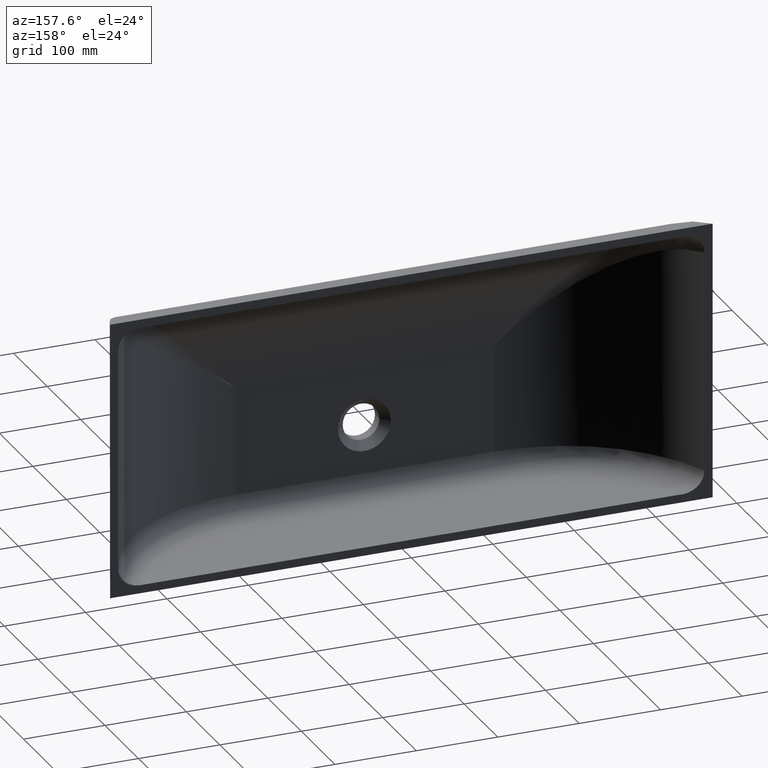
[diagram: clean part render]
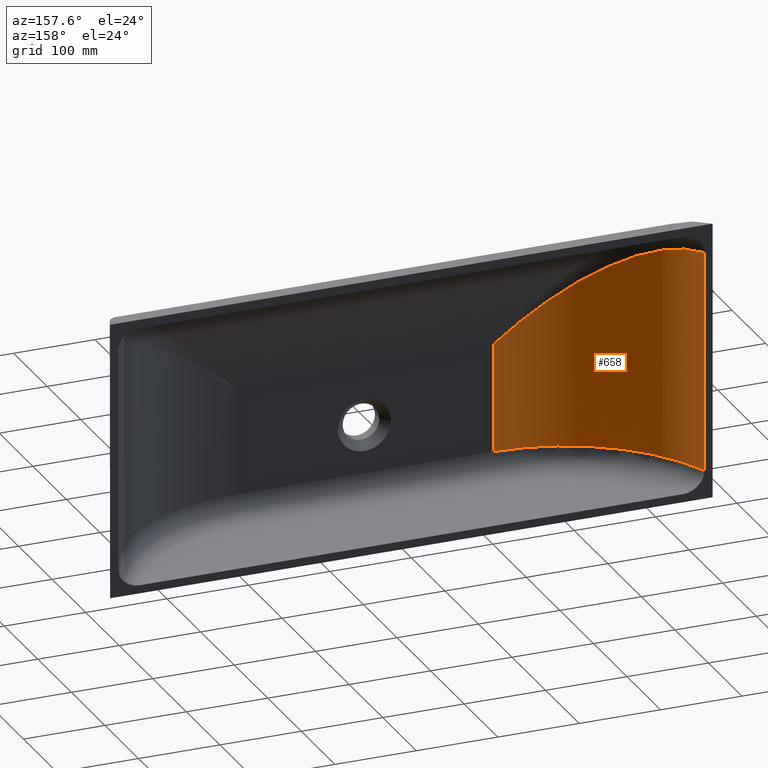
[diagram: same view with one face highlighted and labeled with its STEP entity id]
A machine part, auxiliary view. The second image highlights one B-rep face of the part: STEP entity #658.
In plain terms, the highlighted cylindrical surface (partial cylindrical patch) has radius 214.806 mm, axis along (0, 0, 1).
Its self-contained STEP definition (entity closure, byte-faithful):
#3 = CARTESIAN_POINT ( 'NONE',  ( -227.1934198584183946, -128.8310184732511345, 124.8499052005373073 ) ) ;
#6 = CARTESIAN_POINT ( 'NONE',  ( -158.6406308045411606, -139.9999999999999147, 73.44411091323188145 ) ) ;
#33 = LINE ( 'NONE', #484, #831 ) ;
#45 = CARTESIAN_POINT ( 'NONE',  ( -158.6406308044475111, -140.0000000000000000, -60.00000000000000000 ) ) ;
#46 = VECTOR ( 'NONE', #1389, 1000.000000000000000 ) ;
#51 = VERTEX_POINT ( 'NONE', #1094 ) ;
#88 = CARTESIAN_POINT ( 'NONE',  ( -347.2570916561793410, -28.16232502714300523, 205.9020048363696276 ) ) ;
#95 = ORIENTED_EDGE ( 'NONE', *, *, #1447, .T. ) ;
#96 = CARTESIAN_POINT ( 'NONE',  ( -299.2313097364216787, -87.60637828395461213, 176.5999616289775815 ) ) ;
#111 = CARTESIAN_POINT ( 'NONE',  ( -248.6434323753613853, -120.2525890834863844, 140.6565135572951135 ) ) ;
#117 = CARTESIAN_POINT ( 'NONE',  ( -161.1398200975834811, -139.9863689368887947, 75.32750309490356244 ) ) ;
#121 = CIRCLE ( 'NONE', #777, 214.8056984386814463 ) ;
#165 = ORIENTED_EDGE ( 'NONE', *, *, #1095, .T. ) ;
#203 = CARTESIAN_POINT ( 'NONE',  ( -357.8106508346574515, -5.893213700070434768, 210.2122200404331807 ) ) ;
#213 = CARTESIAN_POINT ( 'NONE',  ( -316.3783258373573517, -71.11214682664270015, 187.9941594452924676 ) ) ;
#229 = CARTESIAN_POINT ( 'NONE',  ( -258.0564958850948187, -115.6277863767295599, 147.5164613029285192 ) ) ;
#234 = CARTESIAN_POINT ( 'NONE',  ( -168.6146506452119525, -139.7827667441171684, 80.95994345571924100 ) ) ;
#242 = CARTESIAN_POINT ( 'NONE',  ( -359.9999999999999432, 0.0000000000000000000, 210.7565910530891813 ) ) ;
#281 = DIRECTION ( 'NONE',  ( 1.000000000000000000, 0.0000000000000000000, 0.0000000000000000000 ) ) ;
#320 = CARTESIAN_POINT ( 'NONE',  ( -331.0618547190505865, -53.44142261572622488, 197.1017097633559558 ) ) ;
#326 = CARTESIAN_POINT ( 'NONE',  ( -278.6032089818747295, -103.4610339426049279, 162.2659122789357866 ) ) ;
#340 = CARTESIAN_POINT ( 'NONE',  ( -183.4595602333294266, -138.6189387174838146, 92.13760849246766327 ) ) ;
#362 = CARTESIAN_POINT ( 'NONE',  ( -158.6406308044474827, 74.80569843868146052, -60.00000000000000000 ) ) ;
#390 = EDGE_CURVE ( 'NONE', #1442, #51, #33, .T. ) ;
#391 = CYLINDRICAL_SURFACE ( 'NONE', #686, 214.8056984386814179 ) ;
#428 = CARTESIAN_POINT ( 'NONE',  ( -340.2515833109065397, -39.91662480037985006, 202.2832586053626471 ) ) ;
#436 = CARTESIAN_POINT ( 'NONE',  ( -291.7631952608430197, -93.79893954700108338, 171.4764680523681761 ) ) ;
#451 = CARTESIAN_POINT ( 'NONE',  ( -222.3892731439125896, -130.3838921225732577, 121.2812376099023055 ) ) ;
#463 = CARTESIAN_POINT ( 'NONE',  ( -359.9999999999999432, 0.0000000000000000000, -60.00000000000000000 ) ) ;
#483 = B_SPLINE_CURVE_WITH_KNOTS ( 'NONE', 3,
 ( #1212, #203, #653, #1112, #88, #539, #996, #1426, #428, #886, #1325, #320, #775, #1220, #213, #661, #1119, #96, #547, #1003, #1434, #436, #894, #1332, #326, #781, #1239, #229, #677, #1133, #111, #563, #1021, #3, #451, #907, #1345, #340, #795, #1243, #234, #681, #1137, #117, #568, #1029, #6 ),
 .UNSPECIFIED., .F., .F.,
 ( 4, 2, 2, 2, 2, 2, 2, 2, 2, 2, 2, 2, 2, 2, 2, 2, 2, 2, 2, 2, 2, 1, 2, 4 ),
 ( 0.0000000000000000000, 0.01876178353988881137, 0.03752356707977762273, 0.04221401296474982384, 0.04690445884972202495, 0.05628535061966651043, 0.07504713415955541200, 0.09380891769944428582, 0.1125707012393331596, 0.1172611471243054093, 0.1219515930092776312, 0.1313324847792221584, 0.1500942683191113236, 0.1688560518590004611, 0.1782369436289451270, 0.1876178353988897374, 0.2063796189387789859, 0.2251414024786682067, 0.2626649695584466482, 0.2814267530983358689, 0.2908076448682804238, 0.2954980907532527290, 0.2978433136957388538, 0.3001885366382250342 ),
 .UNSPECIFIED. ) ;
#484 = CARTESIAN_POINT ( 'NONE',  ( -158.6406308044475111, -140.0000000000000000, -94.99999999999997158 ) ) ;
#499 = LINE ( 'NONE', #953, #46 ) ;
#511 = ORIENTED_EDGE ( 'NONE', *, *, #390, .F. ) ;
#539 = CARTESIAN_POINT ( 'NONE',  ( -343.4212021216332005, -34.73857109587373060, 203.9537345042953405 ) ) ;
#547 = CARTESIAN_POINT ( 'NONE',  ( -298.1781292322464765, -88.51209148958625406, 175.8823915007873495 ) ) ;
#563 = CARTESIAN_POINT ( 'NONE',  ( -241.5263586751979972, -123.4326710989100206, 135.4399473823075652 ) ) ;
#568 = CARTESIAN_POINT ( 'NONE',  ( -159.8907513963983149, -139.9972702398262925, 74.38620839653438566 ) ) ;
#653 = CARTESIAN_POINT ( 'NONE',  ( -355.3905427472005272, -11.61719252623981369, 209.3852843829757830 ) ) ;
#658 = ADVANCED_FACE ( 'NONE', ( #1392 ), #391, .F. ) ;
#661 = CARTESIAN_POINT ( 'NONE',  ( -308.5164176707842216, -79.17626970163955491, 182.8556578731378863 ) ) ;
#677 = CARTESIAN_POINT ( 'NONE',  ( -255.7200992847706971, -116.8292073910611606, 145.8190274360807166 ) ) ;
#681 = CARTESIAN_POINT ( 'NONE',  ( -164.8812327715359629, -139.9129396990194891, 78.14690067478449009 ) ) ;
#686 = AXIS2_PLACEMENT_3D ( 'NONE', #847, #1288, #281 ) ;
#723 = EDGE_LOOP ( 'NONE', ( #95, #165, #511, #985 ) ) ;
#775 = CARTESIAN_POINT ( 'NONE',  ( -327.5240504932546628, -58.05840555291921845, 194.9780544621607703 ) ) ;
#777 = AXIS2_PLACEMENT_3D ( 'NONE', #362, #820, #1262 ) ;
#781 = CARTESIAN_POINT ( 'NONE',  ( -269.5900856402267891, -109.2058949692336114, 155.8435656833144947 ) ) ;
#795 = CARTESIAN_POINT ( 'NONE',  ( -178.5287542241528058, -139.1349785479774255, 88.42680381917648447 ) ) ;
#820 = DIRECTION ( 'NONE',  ( 0.0000000000000000000, 0.0000000000000000000, -1.000000000000000000 ) ) ;
#831 = VECTOR ( 'NONE', #940, 1000.000000000000000 ) ;
#844 = EDGE_CURVE ( 'NONE', #1442, #1301, #121, .T. ) ;
#847 = CARTESIAN_POINT ( 'NONE',  ( -158.6406308044474827, 74.80569843868146052, -94.99999999999997158 ) ) ;
#886 = CARTESIAN_POINT ( 'NONE',  ( -337.8155620879398384, -43.71382667448553860, 200.9572209823130606 ) ) ;
#894 = CARTESIAN_POINT ( 'NONE',  ( -289.5961733079420810, -95.48694221772400681, 169.9734083705574221 ) ) ;
#907 = CARTESIAN_POINT ( 'NONE',  ( -207.9158838116863137, -134.5125164762296208, 110.4974948296492556 ) ) ;
#940 = DIRECTION ( 'NONE',  ( 0.0000000000000000000, 0.0000000000000000000, 1.000000000000000000 ) ) ;
#953 = CARTESIAN_POINT ( 'NONE',  ( -359.9999999999999432, 0.0000000000000000000, -94.99999999999997158 ) ) ;
#985 = ORIENTED_EDGE ( 'NONE', *, *, #844, .T. ) ;
#996 = CARTESIAN_POINT ( 'NONE',  ( -342.6401434544884523, -36.04543760899662175, 203.5493221538877151 ) ) ;
#1003 = CARTESIAN_POINT ( 'NONE',  ( -296.0563203068303437, -90.30136456325821825, 174.4312631447921831 ) ) ;
#1021 = CARTESIAN_POINT ( 'NONE',  ( -236.7619628145235424, -125.3553738174400252, 131.9292495631376596 ) ) ;
#1029 = CARTESIAN_POINT ( 'NONE',  ( -159.2649415445750947, -139.9999999999995168, 73.91459478402050820 ) ) ;
#1094 = CARTESIAN_POINT ( 'NONE',  ( -158.6406308045411606, -139.9999999999999147, 73.44411091323188145 ) ) ;
#1095 = EDGE_CURVE ( 'NONE', #1192, #51, #483, .T. ) ;
#1112 = CARTESIAN_POINT ( 'NONE',  ( -350.1138099851178822, -22.75180043589341494, 207.2303223259599179 ) ) ;
#1119 = CARTESIAN_POINT ( 'NONE',  ( -304.4584673720273713, -83.02200508453056216, 180.1472646448367243 ) ) ;
#1133 = CARTESIAN_POINT ( 'NONE',  ( -251.0144413088852957, -119.1413032542724153, 142.3897019457805015 ) ) ;
#1137 = CARTESIAN_POINT ( 'NONE',  ( -163.0122577205360415, -139.9618549631339022, 76.73855177398714034 ) ) ;
#1192 = VERTEX_POINT ( 'NONE', #242 ) ;
#1212 = CARTESIAN_POINT ( 'NONE',  ( -359.9999999999999432, 0.0000000000000000000, 210.7565910530891813 ) ) ;
#1220 = CARTESIAN_POINT ( 'NONE',  ( -320.1823235447259890, -66.89384666250128930, 190.4243643524012555 ) ) ;
#1239 = CARTESIAN_POINT ( 'NONE',  ( -265.0161948716941538, -111.8851706441029279, 152.5553645336626403 ) ) ;
#1243 = CARTESIAN_POINT ( 'NONE',  ( -171.0975546156773532, -139.6528728312151770, 82.83043307763048801 ) ) ;
#1262 = DIRECTION ( 'NONE',  ( -1.000000000000000000, 0.0000000000000000000, 0.0000000000000000000 ) ) ;
#1288 = DIRECTION ( 'NONE',  ( 0.0000000000000000000, 0.0000000000000000000, 1.000000000000000000 ) ) ;
#1301 = VERTEX_POINT ( 'NONE', #463 ) ;
#1325 = CARTESIAN_POINT ( 'NONE',  ( -336.1540040202621640, -46.18694191426965290, 200.0260708989520140 ) ) ;
#1332 = CARTESIAN_POINT ( 'NONE',  ( -283.0424587351037644, -100.3955323183743360, 165.4001079678953374 ) ) ;
#1345 = CARTESIAN_POINT ( 'NONE',  ( -198.1859843436956510, -136.5610936106214695, 103.2051369939256062 ) ) ;
#1389 = DIRECTION ( 'NONE',  ( 0.0000000000000000000, 0.0000000000000000000, 1.000000000000000000 ) ) ;
#1392 = FACE_OUTER_BOUND ( 'NONE', #723, .T. ) ;
#1426 = CARTESIAN_POINT ( 'NONE',  ( -341.0541988509413613, -38.63629207215440431, 202.7134793178487655 ) ) ;
#1434 = CARTESIAN_POINT ( 'NONE',  ( -294.9866467431284036, -91.18576302358418673, 173.6969836287030944 ) ) ;
#1442 = VERTEX_POINT ( 'NONE', #45 ) ;
#1447 = EDGE_CURVE ( 'NONE', #1301, #1192, #499, .T. ) ;